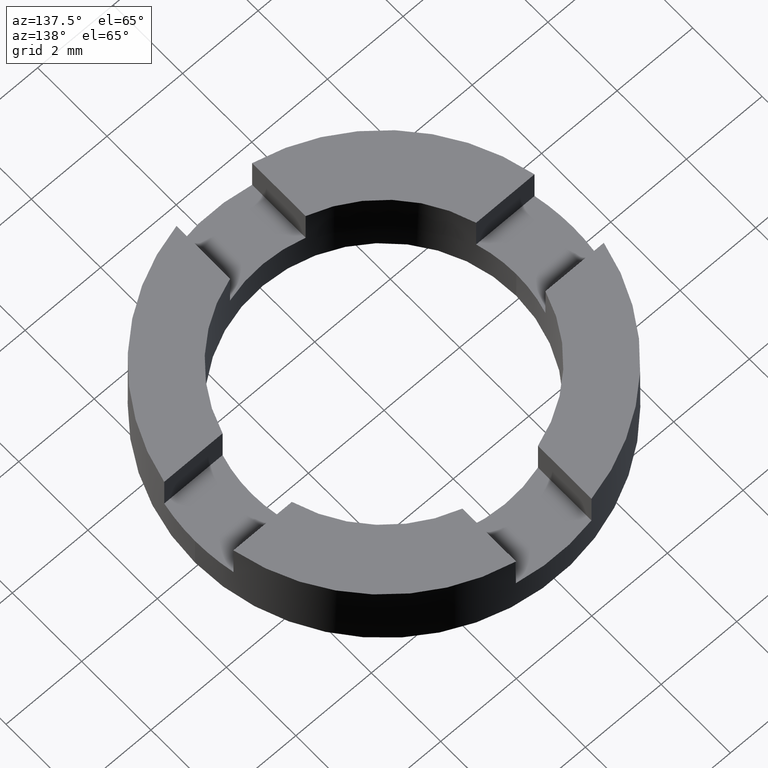
[diagram: clean part render]
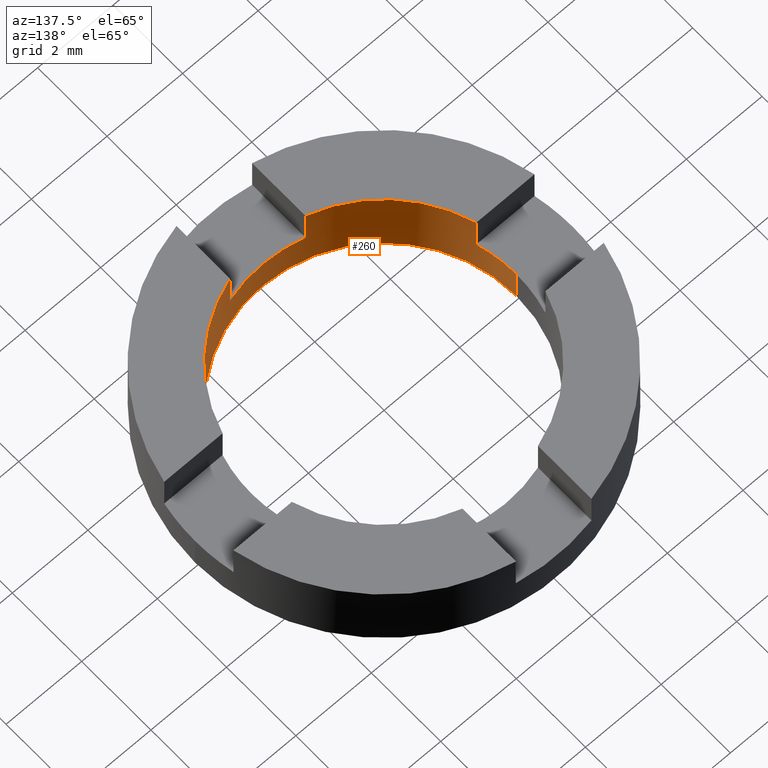
[diagram: same view with one face highlighted and labeled with its STEP entity id]
A machine part, auxiliary view. The second image highlights one B-rep face of the part: STEP entity #260.
In plain terms, the highlighted cylindrical surface (partial cylindrical patch) has radius 3.5 mm, axis along (-0, -0, -1).
Its self-contained STEP definition (entity closure, byte-faithful):
#2 = CARTESIAN_POINT ( 'NONE',  ( -0.9999999999996526112, -3.354101966249788180, 2.000000000000000000 ) ) ;
#4 = CIRCLE ( 'NONE', #725, 3.500000000000000000 ) ;
#12 = EDGE_CURVE ( 'NONE', #44, #113, #588, .T. ) ;
#18 = VECTOR ( 'NONE', #307, 1000.000000000000000 ) ;
#19 = VECTOR ( 'NONE', #26, 1000.000000000000000 ) ;
#26 = DIRECTION ( 'NONE',  ( -0.000000000000000000, -0.000000000000000000, -1.000000000000000000 ) ) ;
#33 = AXIS2_PLACEMENT_3D ( 'NONE', #609, #430, #733 ) ;
#41 = VERTEX_POINT ( 'NONE', #360 ) ;
#44 = VERTEX_POINT ( 'NONE', #130 ) ;
#49 = ORIENTED_EDGE ( 'NONE', *, *, #196, .F. ) ;
#57 = CARTESIAN_POINT ( 'NONE',  ( 3.354101966249698030, -0.9999999999999547029, 2.000000000000000000 ) ) ;
#62 = DIRECTION ( 'NONE',  ( 0.000000000000000000, 0.000000000000000000, 1.000000000000000000 ) ) ;
#65 = EDGE_CURVE ( 'NONE', #319, #113, #632, .T. ) ;
#68 = CARTESIAN_POINT ( 'NONE',  ( -3.354101966249594557, -1.000000000000301981, 2.000000000000000000 ) ) ;
#109 = VERTEX_POINT ( 'NONE', #123 ) ;
#110 = CARTESIAN_POINT ( 'NONE',  ( 0.000000000000000000, 0.000000000000000000, 1.000000000000000000 ) ) ;
#111 = EDGE_CURVE ( 'NONE', #627, #577, #222, .T. ) ;
#113 = VERTEX_POINT ( 'NONE', #247 ) ;
#114 = CARTESIAN_POINT ( 'NONE',  ( 0.000000000000000000, 0.000000000000000000, 2.000000000000000000 ) ) ;
#118 = CIRCLE ( 'NONE', #763, 3.500000000000000000 ) ;
#123 = CARTESIAN_POINT ( 'NONE',  ( -3.354101966249594557, -1.000000000000301981, 2.000000000000000000 ) ) ;
#124 = CARTESIAN_POINT ( 'NONE',  ( 3.354101966249698030, -0.9999999999999547029, 2.000000000000000000 ) ) ;
#130 = CARTESIAN_POINT ( 'NONE',  ( 3.500000000000000000, 4.286263797015736595E-16, 1.000000000000000000 ) ) ;
#155 = DIRECTION ( 'NONE',  ( 1.000000000000000000, 0.000000000000000000, 0.000000000000000000 ) ) ;
#157 = EDGE_CURVE ( 'NONE', #44, #480, #353, .T. ) ;
#176 = FACE_OUTER_BOUND ( 'NONE', #193, .T. ) ;
#184 = DIRECTION ( 'NONE',  ( 0.000000000000000000, 0.000000000000000000, -1.000000000000000000 ) ) ;
#186 = EDGE_CURVE ( 'NONE', #109, #467, #661, .T. ) ;
#189 = CARTESIAN_POINT ( 'NONE',  ( 0.000000000000000000, 0.000000000000000000, 2.000000000000000000 ) ) ;
#193 = EDGE_LOOP ( 'NONE', ( #744, #447, #224, #653, #348, #251, #648, #49, #287, #746, #431, #387 ) ) ;
#196 = EDGE_CURVE ( 'NONE', #41, #374, #495, .T. ) ;
#197 = CARTESIAN_POINT ( 'NONE',  ( 0.000000000000000000, 0.000000000000000000, 1.000000000000000000 ) ) ;
#203 = DIRECTION ( 'NONE',  ( 0.000000000000000000, -0.000000000000000000, -1.000000000000000000 ) ) ;
#207 = EDGE_CURVE ( 'NONE', #229, #41, #118, .T. ) ;
#215 = AXIS2_PLACEMENT_3D ( 'NONE', #114, #671, #546 ) ;
#222 = CIRCLE ( 'NONE', #754, 3.500000000000000000 ) ;
#224 = ORIENTED_EDGE ( 'NONE', *, *, #65, .F. ) ;
#229 = VERTEX_POINT ( 'NONE', #668 ) ;
#236 = CARTESIAN_POINT ( 'NONE',  ( 1.000000000000347500, -3.354101966249581235, 2.000000000000000000 ) ) ;
#240 = EDGE_CURVE ( 'NONE', #480, #577, #301, .T. ) ;
#247 = CARTESIAN_POINT ( 'NONE',  ( 3.500000000000000000, 4.286263797015736595E-16, 0.000000000000000000 ) ) ;
#251 = ORIENTED_EDGE ( 'NONE', *, *, #186, .F. ) ;
#260 = ADVANCED_FACE ( 'NONE', ( #176 ), #347, .F. ) ;
#269 = DIRECTION ( 'NONE',  ( 0.000000000000000000, 0.000000000000000000, 1.000000000000000000 ) ) ;
#282 = CARTESIAN_POINT ( 'NONE',  ( 3.500000000000000000, 4.286263797015736595E-16, 2.000000000000000000 ) ) ;
#287 = ORIENTED_EDGE ( 'NONE', *, *, #207, .F. ) ;
#289 = VECTOR ( 'NONE', #425, 1000.000000000000000 ) ;
#301 = LINE ( 'NONE', #124, #289 ) ;
#307 = DIRECTION ( 'NONE',  ( 0.000000000000000000, 0.000000000000000000, 1.000000000000000000 ) ) ;
#319 = VERTEX_POINT ( 'NONE', #628 ) ;
#347 = CYLINDRICAL_SURFACE ( 'NONE', #215, 3.500000000000000000 ) ;
#348 = ORIENTED_EDGE ( 'NONE', *, *, #619, .F. ) ;
#349 = CARTESIAN_POINT ( 'NONE',  ( -3.354101966249594557, -1.000000000000301981, 1.000000000000000000 ) ) ;
#353 = CIRCLE ( 'NONE', #33, 3.500000000000000000 ) ;
#359 = CARTESIAN_POINT ( 'NONE',  ( 3.354101966249698030, -0.9999999999999547029, 1.000000000000000000 ) ) ;
#360 = CARTESIAN_POINT ( 'NONE',  ( -0.9999999999996526112, -3.354101966249788180, 1.000000000000000000 ) ) ;
#368 = VECTOR ( 'NONE', #549, 1000.000000000000000 ) ;
#374 = VERTEX_POINT ( 'NONE', #560 ) ;
#387 = ORIENTED_EDGE ( 'NONE', *, *, #240, .F. ) ;
#415 = DIRECTION ( 'NONE',  ( 1.000000000000000000, 0.000000000000000000, 0.000000000000000000 ) ) ;
#424 = DIRECTION ( 'NONE',  ( 1.000000000000000000, 0.000000000000000000, 0.000000000000000000 ) ) ;
#425 = DIRECTION ( 'NONE',  ( 0.000000000000000000, 0.000000000000000000, 1.000000000000000000 ) ) ;
#427 = CARTESIAN_POINT ( 'NONE',  ( 1.000000000000347500, -3.354101966249581235, 2.000000000000000000 ) ) ;
#430 = DIRECTION ( 'NONE',  ( 0.000000000000000000, 0.000000000000000000, -1.000000000000000000 ) ) ;
#431 = ORIENTED_EDGE ( 'NONE', *, *, #111, .T. ) ;
#447 = ORIENTED_EDGE ( 'NONE', *, *, #12, .T. ) ;
#452 = VECTOR ( 'NONE', #593, 1000.000000000000000 ) ;
#467 = VERTEX_POINT ( 'NONE', #349 ) ;
#480 = VERTEX_POINT ( 'NONE', #359 ) ;
#490 = DIRECTION ( 'NONE',  ( -1.000000000000000000, 0.000000000000000000, 0.000000000000000000 ) ) ;
#495 = LINE ( 'NONE', #2, #18 ) ;
#502 = CARTESIAN_POINT ( 'NONE',  ( -3.500000000000000000, 0.000000000000000000, 1.000000000000000000 ) ) ;
#503 = VECTOR ( 'NONE', #773, 1000.000000000000000 ) ;
#523 = EDGE_CURVE ( 'NONE', #627, #229, #595, .T. ) ;
#546 = DIRECTION ( 'NONE',  ( -1.000000000000000000, 0.000000000000000000, 0.000000000000000000 ) ) ;
#549 = DIRECTION ( 'NONE',  ( -0.000000000000000000, -0.000000000000000000, -1.000000000000000000 ) ) ;
#560 = CARTESIAN_POINT ( 'NONE',  ( -0.9999999999996526112, -3.354101966249788180, 2.000000000000000000 ) ) ;
#567 = DIRECTION ( 'NONE',  ( -1.000000000000000000, 0.000000000000000000, 0.000000000000000000 ) ) ;
#574 = LINE ( 'NONE', #638, #19 ) ;
#577 = VERTEX_POINT ( 'NONE', #57 ) ;
#588 = LINE ( 'NONE', #282, #368 ) ;
#593 = DIRECTION ( 'NONE',  ( -0.000000000000000000, -0.000000000000000000, -1.000000000000000000 ) ) ;
#595 = LINE ( 'NONE', #236, #452 ) ;
#608 = DIRECTION ( 'NONE',  ( 0.000000000000000000, 0.000000000000000000, 1.000000000000000000 ) ) ;
#609 = CARTESIAN_POINT ( 'NONE',  ( 0.000000000000000000, 0.000000000000000000, 1.000000000000000000 ) ) ;
#619 = EDGE_CURVE ( 'NONE', #467, #623, #4, .T. ) ;
#623 = VERTEX_POINT ( 'NONE', #502 ) ;
#627 = VERTEX_POINT ( 'NONE', #427 ) ;
#628 = CARTESIAN_POINT ( 'NONE',  ( -3.500000000000000000, 0.000000000000000000, 0.000000000000000000 ) ) ;
#632 = CIRCLE ( 'NONE', #724, 3.500000000000000000 ) ;
#638 = CARTESIAN_POINT ( 'NONE',  ( -3.500000000000000000, 0.000000000000000000, 2.000000000000000000 ) ) ;
#648 = ORIENTED_EDGE ( 'NONE', *, *, #708, .T. ) ;
#653 = ORIENTED_EDGE ( 'NONE', *, *, #761, .F. ) ;
#661 = LINE ( 'NONE', #68, #503 ) ;
#668 = CARTESIAN_POINT ( 'NONE',  ( 1.000000000000347500, -3.354101966249581235, 1.000000000000000000 ) ) ;
#669 = CARTESIAN_POINT ( 'NONE',  ( 0.000000000000000000, 0.000000000000000000, 2.000000000000000000 ) ) ;
#671 = DIRECTION ( 'NONE',  ( -0.000000000000000000, -0.000000000000000000, -1.000000000000000000 ) ) ;
#708 = EDGE_CURVE ( 'NONE', #109, #374, #755, .T. ) ;
#712 = AXIS2_PLACEMENT_3D ( 'NONE', #669, #269, #155 ) ;
#719 = CARTESIAN_POINT ( 'NONE',  ( 0.000000000000000000, 0.000000000000000000, 0.000000000000000000 ) ) ;
#724 = AXIS2_PLACEMENT_3D ( 'NONE', #719, #608, #415 ) ;
#725 = AXIS2_PLACEMENT_3D ( 'NONE', #197, #203, #567 ) ;
#733 = DIRECTION ( 'NONE',  ( -1.000000000000000000, 0.000000000000000000, 0.000000000000000000 ) ) ;
#744 = ORIENTED_EDGE ( 'NONE', *, *, #157, .F. ) ;
#746 = ORIENTED_EDGE ( 'NONE', *, *, #523, .F. ) ;
#754 = AXIS2_PLACEMENT_3D ( 'NONE', #189, #62, #424 ) ;
#755 = CIRCLE ( 'NONE', #712, 3.500000000000000000 ) ;
#761 = EDGE_CURVE ( 'NONE', #623, #319, #574, .T. ) ;
#763 = AXIS2_PLACEMENT_3D ( 'NONE', #110, #184, #490 ) ;
#773 = DIRECTION ( 'NONE',  ( -0.000000000000000000, -0.000000000000000000, -1.000000000000000000 ) ) ;